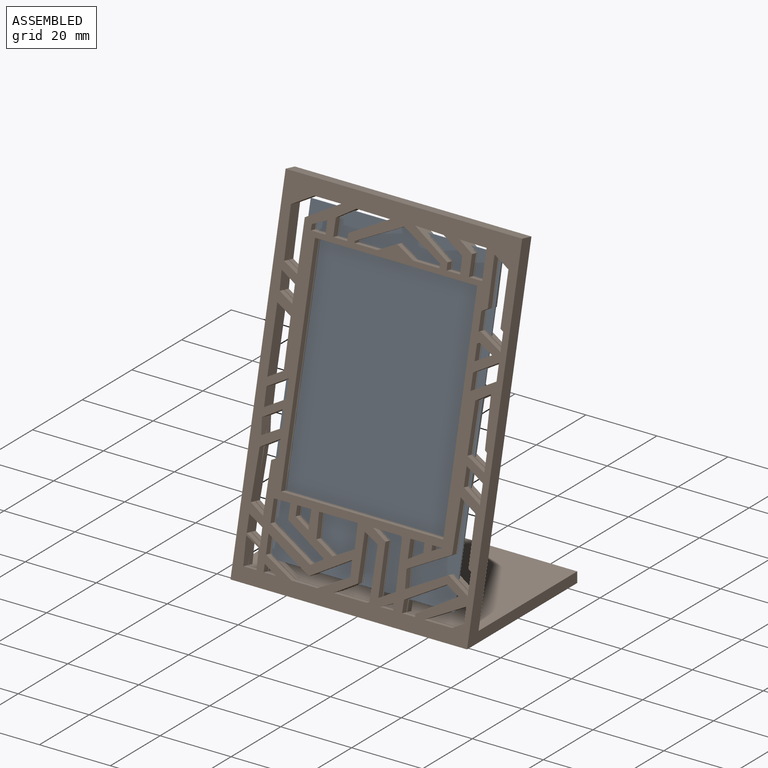
[diagram: assembled view]
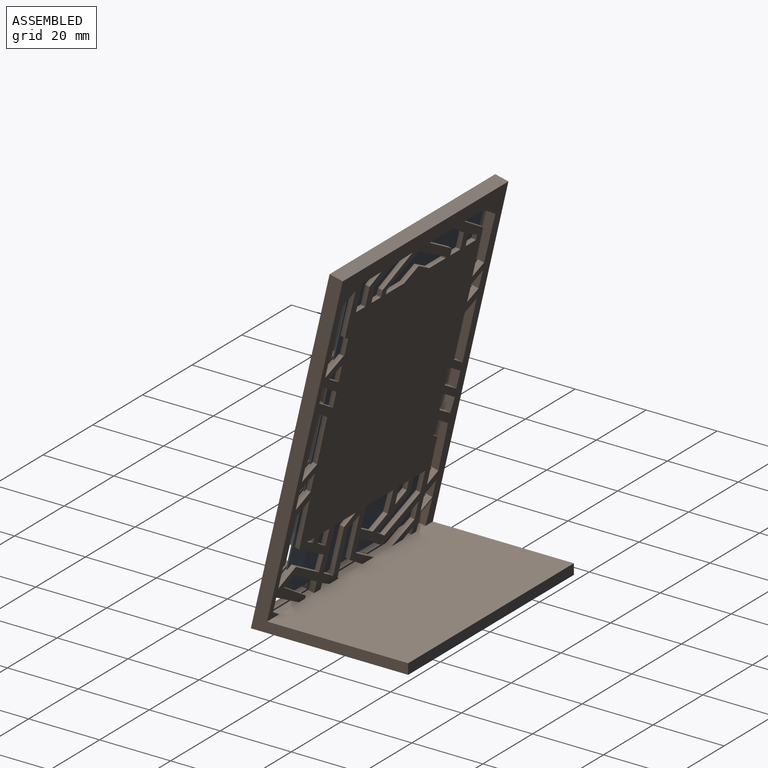
[diagram: assembled view, second angle]
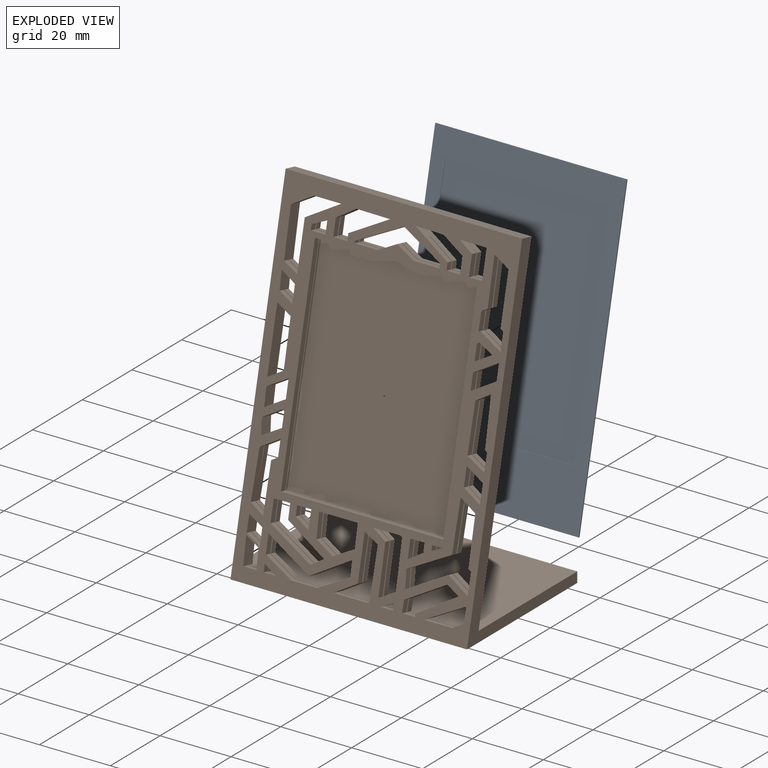
[diagram: exploded view]
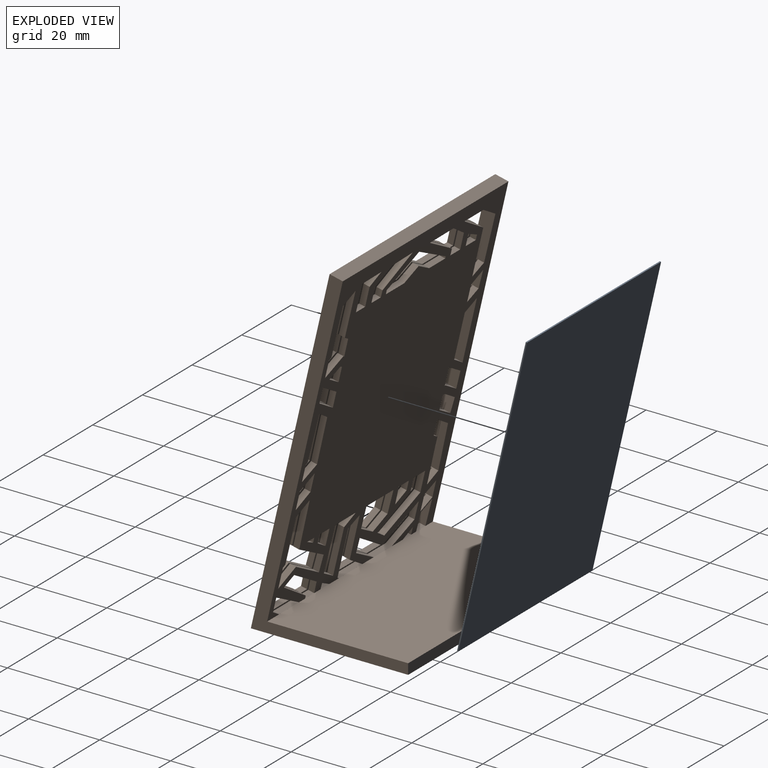
[diagram: exploded view, second angle]
ASSEMBLY  parts=2 mates=2
PART A: 11 faces, bbox 54x86x0.4 mm
  f0: plane 86x54mm, normal (0,0,1), area 1792mm2, adj f1,f2,f3,f4,f6,f7,f8,f9
  f1: plane 54x0.36mm, normal (0,-1,0), area 19.2mm2, adj f0,f2,f4,f5
  f2: plane 86x0.36mm, normal (1,0,0), area 30.6mm2, adj f0,f1,f3,f5
  f3: plane 54x0.36mm, normal (0,1,0), area 19.2mm2, adj f0,f2,f4,f5
  f4: plane 86x0.36mm, normal (-1,0,0), area 30.6mm2, adj f0,f1,f3,f5
  f5: plane 86x54mm, normal (0,0,-1), area 4644mm2, adj f1,f2,f3,f4
  f6: plane 46x0.13mm, normal (0,1,0), area 5.8mm2, adj f0,f7,f9,f10
  f7: plane 62x0.13mm, normal (-1,0,0), area 7.9mm2, adj f0,f6,f8,f10
  f8: plane 46x0.13mm, normal (0,-1,0), area 5.8mm2, adj f0,f7,f9,f10
  f9: plane 62x0.13mm, normal (1,0,0), area 7.9mm2, adj f0,f6,f8,f10
  f10: plane 62x46mm, normal (0,0,1), area 2852mm2, adj f6,f7,f8,f9
PART B: 310 faces, bbox 66.7x98.7x43.2 mm
  f0: plane 91.87x60.96mm, normal (0,0,1), area 1439.5mm2, adj f1,f2,f6,f7,f8,f9,f10,f11
  f1: plane 6.23x0.36mm, normal (1,0,0), area 2.2mm2, adj f0,f3,f166,f309
  f2: plane 4.7x0.36mm, normal (-1,0,0), area 1.7mm2, adj f0,f3,f95,f309
  f3: plane 91.95x60.96mm, normal (0,0,-1), area 1444.5mm2, adj f1,f2,f6,f7,f8,f9,f10,f11
  f4: plane 94.79x66.7mm, normal (0,0,-1), area 4839.6mm2, adj f27,f28,f29,f31,f37,f38,f39,f40
  f5: plane 98.7x66.7mm, normal (0,0,1), area 2313.3mm2, adj f23,f24,f25,f26,f27,f28,f29,f37
  f6: plane 4.31x0.36mm, normal (0,-1,0), area 1.5mm2, adj f0,f3,f118,f128
  f7: plane 4.43x0.36mm, normal (0,-1,0), area 1.6mm2, adj f0,f3,f77,f116
  f8: plane 5.27x0.36mm, normal (0,-1,0), area 1.9mm2, adj f0,f3,f106,f129
  f9: plane 4.79x0.36mm, normal (0,-1,0), area 1.7mm2, adj f0,f3,f40,f107
  f10: plane 2.4x0.36mm, normal (0,-1,0), area 0.9mm2, adj f0,f3,f61,f75
  f11: plane 2.33x0.36mm, normal (1,0,0), area 0.8mm2, adj f0,f3,f187,f195
  f12: plane 2.34x0.36mm, normal (1,0,0), area 0.8mm2, adj f0,f3,f182,f196
  f13: plane 12.29x0.36mm, normal (1,0,0), area 4.4mm2, adj f0,f3,f153,f188
  f14: plane 6.66x0.36mm, normal (1,0,0), area 2.4mm2, adj f0,f3,f37,f177
  f15: plane 2.88x0.36mm, normal (1,0,0), area 1mm2, adj f0,f3,f178,f184
  f16: plane 0.55x0.36mm, normal (1,0,0), area 0.2mm2, adj f0,f3,f160,f165
  f17: plane 2.74x0.36mm, normal (1,0,0), area 1mm2, adj f0,f3,f154,f159
  f18: plane 3.72x0.36mm, normal (-1,0,0), area 1.3mm2, adj f0,f3,f93,f232
  f19: plane 2.81x0.36mm, normal (-1,0,0), area 1mm2, adj f0,f3,f83,f233
  f20: plane 2.5x0.36mm, normal (-1,0,0), area 0.9mm2, adj f0,f3,f81,f87
  f21: plane 2.69x0.36mm, normal (-1,0,0), area 1mm2, adj f0,f3,f53,f88
  f22: plane 3.87x0.36mm, normal (-1,0,0), area 1.4mm2, adj f0,f3,f54,f60
  f23: plane 45.72x1.73mm, normal (0,1,0), area 79mm2, adj f3,f5,f24,f26
  f24: plane 60.96x1.73mm, normal (-1,0,0), area 105.3mm2, adj f3,f5,f23,f25
  f25: plane 45.72x1.73mm, normal (0,-1,0), area 79mm2, adj f3,f5,f24,f26
  f26: plane 60.96x1.73mm, normal (1,0,0), area 105.3mm2, adj f3,f5,f23,f25
  f27: plane 98.7x43.22mm, normal (1,0,0), area 492.8mm2, adj f4,f5,f28,f30,f31,f309
  f28: plane 66.7x3.81mm, normal (0,1,0), area 254.1mm2, adj f4,f5,f27,f29
  f29: plane 98.7x43.22mm, normal (-1,0,0), area 492.8mm2, adj f4,f5,f28,f30,f31,f309
  f30: plane 66.7x2.88mm, normal (0,0.22,-0.97), area 197mm2, adj f27,f29,f31,f309
  f31: plane 66.7x38.74mm, normal (0,0.97,0.22), area 2652mm2, adj f4,f27,f29,f30
  f32: plane 60.96x45.72mm, normal (0,0,1), area 2787.1mm2, adj f33,f34,f35,f36
  f33: plane 60.96x0.46mm, normal (1,0,0), area 27.9mm2, adj f0,f32,f34,f36
  f34: plane 45.72x0.46mm, normal (0,-1,0), area 20.9mm2, adj f0,f32,f33,f35
  f35: plane 60.96x0.46mm, normal (-1,0,0), area 27.9mm2, adj f0,f32,f34,f36
  f36: plane 45.72x0.46mm, normal (0,1,0), area 20.9mm2, adj f0,f32,f33,f35
  f37: plane 13.54x3.81mm, normal (1,0.02,0), area 50.1mm2, adj f0,f3,f4,f5,f14,f38,f41,f43
  f38: plane 4.02x2.18mm, normal (0.48,0.88,0), area 7.9mm2, adj f0,f4,f37,f39
  f39: plane 13.66x1.73mm, normal (-1,0,0), area 23.6mm2, adj f0,f4,f38,f40
  f40: plane 9.41x5.62mm, normal (-0.51,0.86,0), area 39.3mm2, adj f0,f3,f4,f5,f9,f39,f42,f44
  f41: plane 4.02x2.18mm, normal (0.48,0.88,0), area 7.9mm2, adj f3,f5,f37,f42
  f42: plane 13.66x1.73mm, normal (-1,0,0), area 23.6mm2, adj f3,f5,f40,f41
  f43: plane 6x3.81mm, normal (0.51,-0.86,0), area 25.6mm2, adj f4,f5,f37,f44,f45,f46,f47,f48
  f44: plane 7.66x3.81mm, normal (0,-1,0), area 29.2mm2, adj f4,f5,f40,f43
  f45: plane 2.39x1.42mm, normal (0,0,-1), area 1.7mm2, adj f43,f46,f48
  f46: plane 1.42x0.36mm, normal (1,0,0), area 0.5mm2, adj f43,f45,f47,f48
  f47: plane 2.39x1.42mm, normal (0,0,1), area 1.7mm2, adj f43,f46,f48
  f48: plane 2.39x0.36mm, normal (0,-1,0), area 0.8mm2, adj f43,f45,f46,f47
  f49: plane 1.73x0.69mm, normal (0.51,-0.86,0), area 1.4mm2, adj f3,f5,f50,f52
  f50: plane 3.83x2.04mm, normal (-0.47,-0.88,0), area 7.5mm2, adj f3,f5,f49,f51
  f51: plane 4.52x2.6mm, normal (-0.5,0.87,0), area 9mm2, adj f3,f5,f50,f52
  f52: plane 4.22x1.73mm, normal (1,0,0), area 7.3mm2, adj f3,f5,f49,f51
  f53: plane 6.68x3.96mm, normal (-0.51,0.86,0), area 27.3mm2, adj f0,f3,f4,f5,f21,f55,f56,f57
  f54: plane 6.68x3.99mm, normal (0.51,-0.86,0), area 27.3mm2, adj f0,f3,f4,f5,f22,f55,f56,f57
  f55: plane 4.44x1.73mm, normal (1,0,0), area 7.7mm2, adj f0,f4,f53,f54
  f56: plane 4.47x3.81mm, normal (-1,0,0), area 17mm2, adj f4,f5,f53,f54
  f57: plane 4.44x1.73mm, normal (1,0,0), area 7.7mm2, adj f3,f5,f53,f54
  f58: plane 4.95x1.73mm, normal (1,0,0), area 8.5mm2, adj f0,f4,f59,f62
  f59: plane 1.73x0.45mm, normal (-0.49,0.87,0), area 0.9mm2, adj f0,f4,f58,f60
  f60: plane 6.23x3.81mm, normal (0.49,0.87,0), area 25.1mm2, adj f0,f3,f4,f5,f22,f59,f64,f65
  f61: plane 13.06x3.81mm, normal (1,0.01,0), area 45.4mm2, adj f0,f3,f4,f5,f10,f62,f68,f69
  f62: plane 1.73x1.65mm, normal (0.49,-0.87,0), area 3.3mm2, adj f0,f4,f58,f61
  f63: plane 4.95x1.73mm, normal (1,0,0), area 8.5mm2, adj f3,f5,f64,f69
  f64: plane 1.73x0.45mm, normal (-0.49,0.87,0), area 0.9mm2, adj f3,f5,f60,f63
  f65: plane 4.9x3.81mm, normal (-1,0,0), area 18.7mm2, adj f4,f5,f60,f66
  f66: plane 3.81x0.84mm, normal (-0.51,-0.86,0), area 3.7mm2, adj f4,f5,f65,f67
  f67: plane 14.25x3.81mm, normal (-1,0,0), area 54.3mm2, adj f4,f5,f66,f68
  f68: plane 4.31x3.81mm, normal (-0.5,-0.86,0), area 17.9mm2, adj f4,f5,f61,f67,f70,f71,f72,f73
  f69: plane 1.73x1.65mm, normal (0.49,-0.87,0), area 3.3mm2, adj f3,f5,f61,f63
  f70: plane 2.66x1.55mm, normal (0,0,-1), area 2.1mm2, adj f68,f71,f73
  f71: plane 1.55x0.36mm, normal (-1,0,0), area 0.6mm2, adj f68,f70,f72,f73
  f72: plane 2.66x1.55mm, normal (0,0,1), area 2.1mm2, adj f68,f71,f73
  f73: plane 2.66x0.36mm, normal (0,-1,0), area 0.9mm2, adj f68,f70,f71,f72
  f74: plane 3.71x1.73mm, normal (0,1,0), area 6.4mm2, adj f0,f4,f75,f76
  f75: plane 7.96x3.81mm, normal (-1,0,0), area 28.1mm2, adj f0,f3,f4,f5,f10,f74,f78,f80
  f76: plane 5.56x1.73mm, normal (1,0,0), area 9.6mm2, adj f0,f4,f74,f77
  f77: plane 3.95x3.81mm, normal (0.54,0.84,0), area 17.4mm2, adj f0,f3,f4,f5,f7,f76,f79,f80
  f78: plane 3.71x1.73mm, normal (0,1,0), area 6.4mm2, adj f3,f5,f75,f79
  f79: plane 5.56x1.73mm, normal (1,0,0), area 9.6mm2, adj f3,f5,f77,f78
  f80: plane 7.67x3.81mm, normal (-0.02,-1,0), area 29.2mm2, adj f4,f5,f75,f77
  f81: plane 5x3.81mm, normal (-0.51,-0.86,0), area 20.5mm2, adj f0,f3,f4,f5,f20,f82,f84,f85
  f82: plane 5.15x1.73mm, normal (1,0,0), area 8.9mm2, adj f0,f4,f81,f83
  f83: plane 5x3.81mm, normal (0.52,0.86,0), area 20.6mm2, adj f0,f3,f4,f5,f19,f82,f84,f85
  f84: plane 5.24x3.81mm, normal (-1,0,0), area 20mm2, adj f4,f5,f81,f83
  f85: plane 5.15x1.73mm, normal (1,0,0), area 8.9mm2, adj f3,f5,f81,f83
  f86: plane 13.25x1.73mm, normal (1,-0.01,0), area 22.9mm2, adj f0,f4,f87,f88
  f87: plane 5.18x3.81mm, normal (0.48,0.88,0), area 20.8mm2, adj f0,f3,f4,f5,f20,f86,f89,f90
  f88: plane 3.99x3.81mm, normal (0.54,-0.84,0), area 16.4mm2, adj f0,f3,f4,f5,f21,f86,f89,f92
  f89: plane 13.25x1.73mm, normal (1,-0.01,0), area 22.9mm2, adj f3,f5,f87,f88
  f90: plane 4.82x3.81mm, normal (-1,0,0), area 18.4mm2, adj f4,f5,f87,f91
  f91: plane 3.81x0.62mm, normal (-0.54,-0.84,0), area 2.8mm2, adj f4,f5,f90,f92
  f92: plane 13.39x3.81mm, normal (-1,-0.03,0), area 51mm2, adj f4,f5,f88,f91
  f93: plane 11.05x5.93mm, normal (0.47,-0.88,0), area 43.8mm2, adj f0,f3,f4,f5,f18,f94,f96,f97
  f94: plane 7.99x1.73mm, normal (0,1,0), area 13.8mm2, adj f0,f4,f93,f95
  f95: plane 3.81x3.06mm, normal (-0.52,0.86,0), area 12.8mm2, adj f0,f2,f3,f4,f5,f94,f96,f97
  f96: plane 4.09x3.81mm, normal (-1,0,0), area 15.6mm2, adj f4,f5,f93,f95
  f97: plane 7.99x1.73mm, normal (0,1,0), area 13.8mm2, adj f3,f5,f93,f95
  f98: plane 3.59x1.73mm, normal (0,1,0), area 6.2mm2, adj f3,f5,f99,f100
  f99: plane 3.46x1.73mm, normal (0.45,-0.89,0), area 6.7mm2, adj f3,f5,f98,f100
  f100: plane 1.73x1.73mm, normal (-1,-0.07,0), area 3mm2, adj f3,f5,f98,f99
  f101: plane 3.45x1.73mm, normal (-1,-0.01,0), area 6mm2, adj f3,f5,f102,f104
  f102: plane 4.11x1.73mm, normal (0,1,0), area 7.1mm2, adj f3,f5,f101,f103
  f103: plane 1.73x1.53mm, normal (1,-0.02,0), area 2.6mm2, adj f3,f5,f102,f104
  f104: plane 4.05x1.92mm, normal (0.43,-0.9,0), area 7.7mm2, adj f3,f5,f101,f103
  f105: plane 1.93x1.73mm, normal (-1,0,0), area 3.3mm2, adj f0,f4,f106,f109
  f106: plane 10.83x6.07mm, normal (-0.49,0.87,0), area 44.2mm2, adj f0,f3,f4,f5,f8,f105,f110,f111
  f107: plane 5.26x3.81mm, normal (0.55,-0.84,0), area 23mm2, adj f0,f3,f4,f5,f9,f108,f111,f112
  f108: plane 4.66x1.73mm, normal (1,0,0), area 8.1mm2, adj f0,f4,f107,f109
  f109: plane 3.95x1.73mm, normal (0,1,0), area 6.8mm2, adj f0,f4,f105,f108
  f110: plane 1.93x1.73mm, normal (-1,0,0), area 3.3mm2, adj f3,f5,f106,f113
  f111: plane 9.52x3.81mm, normal (-0.01,-1,0), area 36.3mm2, adj f4,f5,f106,f107
  f112: plane 4.66x1.73mm, normal (1,0,0), area 8.1mm2, adj f3,f5,f107,f113
  f113: plane 3.95x1.73mm, normal (0,1,0), area 6.8mm2, adj f3,f5,f110,f112
  f114: plane 3.78x1.73mm, normal (0,1,0), area 6.5mm2, adj f0,f4,f115,f117
  f115: plane 4.42x1.73mm, normal (-1,-0.01,0), area 7.6mm2, adj f0,f4,f114,f116
  f116: plane 5.85x3.81mm, normal (-0.52,-0.85,0), area 25mm2, adj f0,f3,f4,f5,f7,f115,f120,f122
  f117: plane 1.95x1.73mm, normal (1,0.04,0), area 3.4mm2, adj f0,f4,f114,f118
  f118: plane 10.12x6.3mm, normal (0.53,0.85,0), area 42.6mm2, adj f0,f3,f4,f5,f6,f117,f121,f122
  f119: plane 3.78x1.73mm, normal (0,1,0), area 6.5mm2, adj f3,f5,f120,f121
  f120: plane 4.42x1.73mm, normal (-1,-0.01,0), area 7.6mm2, adj f3,f5,f116,f119
  f121: plane 1.95x1.73mm, normal (1,0.04,0), area 3.4mm2, adj f3,f5,f118,f119
  f122: plane 8.1x3.81mm, normal (-0.03,-1,0), area 30.9mm2, adj f4,f5,f116,f118
  f123: plane 6.46x1.73mm, normal (0,1,0), area 11.2mm2, adj f0,f4,f124,f130
  f124: plane 5.12x2.74mm, normal (-0.47,0.88,0), area 10mm2, adj f0,f4,f123,f125
  f125: plane 4.96x2.74mm, normal (0.48,0.88,0), area 9.8mm2, adj f0,f4,f124,f126
  f126: plane 7.33x1.73mm, normal (0,1,0), area 12.7mm2, adj f0,f4,f125,f127
  f127: plane 1.73x1.16mm, normal (-1,0.07,0), area 2mm2, adj f0,f4,f126,f128
  f128: plane 11.13x6.07mm, normal (-0.48,-0.88,0), area 44.6mm2, adj f0,f3,f4,f5,f6,f127,f129,f135
  f129: plane 12.82x6.64mm, normal (0.46,-0.89,0), area 50.7mm2, adj f0,f3,f4,f5,f8,f128,f130,f136
  f130: plane 1.73x0.6mm, normal (1,0,0), area 1mm2, adj f0,f4,f123,f129
  f131: plane 6.46x1.73mm, normal (0,1,0), area 11.2mm2, adj f3,f5,f132,f136
  f132: plane 5.12x2.74mm, normal (-0.47,0.88,0), area 10mm2, adj f3,f5,f131,f133
  f133: plane 4.96x2.74mm, normal (0.48,0.88,0), area 9.8mm2, adj f3,f5,f132,f134
  f134: plane 7.33x1.73mm, normal (0,1,0), area 12.7mm2, adj f3,f5,f133,f135
  f135: plane 1.73x1.16mm, normal (-1,0.07,0), area 2mm2, adj f3,f5,f128,f134
  f136: plane 1.73x0.6mm, normal (1,0,0), area 1mm2, adj f3,f5,f129,f131
  f137: plane 6.31x3.82mm, normal (0.52,-0.86,0), area 12.7mm2, adj f3,f5,f138,f142
  f138: plane 12.47x1.73mm, normal (1,0,0), area 21.5mm2, adj f3,f5,f137,f139
  f139: plane 3.99x2.08mm, normal (-0.46,-0.89,0), area 7.8mm2, adj f3,f5,f138,f140
  f140: plane 13.81x1.73mm, normal (-1,0.01,0), area 23.8mm2, adj f3,f5,f139,f141
  f141: plane 1.73x0.71mm, normal (-0.5,0.86,0), area 1.4mm2, adj f3,f5,f140,f142
  f142: plane 9.42x1.73mm, normal (0,1,0), area 16.3mm2, adj f3,f5,f137,f141
  f143: plane 3.47x2.04mm, normal (-0.51,-0.86,0), area 7mm2, adj f3,f5,f144,f148
  f144: plane 11.02x6.83mm, normal (-0.53,0.85,0), area 22.4mm2, adj f3,f5,f143,f145
  f145: plane 1.73x0.86mm, normal (-1,0,0), area 1.5mm2, adj f3,f5,f144,f146
  f146: plane 3.66x1.73mm, normal (0,1,0), area 6.3mm2, adj f3,f5,f145,f147
  f147: plane 3.26x1.73mm, normal (1,-0.02,0), area 5.6mm2, adj f3,f5,f146,f148
  f148: plane 11.14x6.47mm, normal (0.5,-0.86,0), area 22.2mm2, adj f3,f5,f143,f147
  f149: plane 13.47x1.73mm, normal (-1,0.01,0), area 23.3mm2, adj f0,f4,f150,f154
  f150: plane 1.76x1.73mm, normal (-0.5,0.87,0), area 3.5mm2, adj f0,f4,f149,f151
  f151: plane 4.5x1.73mm, normal (-1,0,0), area 7.8mm2, adj f0,f4,f150,f152
  f152: plane 5.37x3.26mm, normal (0.52,-0.85,0), area 10.9mm2, adj f0,f4,f151,f153
  f153: plane 13.39x3.81mm, normal (1,-0.03,0), area 48.3mm2, adj f0,f3,f4,f5,f13,f152,f154,f158
  f154: plane 3.83x3.81mm, normal (0.52,0.85,0), area 15.5mm2, adj f0,f3,f4,f5,f17,f149,f153,f155
  f155: plane 13.47x1.73mm, normal (-1,0.01,0), area 23.3mm2, adj f3,f5,f154,f156
  f156: plane 1.76x1.73mm, normal (-0.5,0.87,0), area 3.5mm2, adj f3,f5,f155,f157
  f157: plane 4.5x1.73mm, normal (-1,0,0), area 7.8mm2, adj f3,f5,f156,f158
  f158: plane 5.37x3.26mm, normal (0.52,-0.85,0), area 10.9mm2, adj f3,f5,f153,f157
  f159: plane 4.02x3.81mm, normal (-0.49,-0.87,0), area 16mm2, adj f0,f3,f4,f5,f17,f161,f162,f163
  f160: plane 4.1x3.81mm, normal (0.49,0.87,0), area 16.3mm2, adj f0,f3,f4,f5,f16,f161,f162,f163
  f161: plane 4.69x1.73mm, normal (-1,-0.02,0), area 8.1mm2, adj f0,f4,f159,f160
  f162: plane 4.64x3.81mm, normal (1,0,0), area 17.7mm2, adj f4,f5,f159,f160
  f163: plane 4.69x1.73mm, normal (-1,-0.02,0), area 8.1mm2, adj f3,f5,f159,f160
  f164: plane 5.33x1.73mm, normal (-1,-0.04,0), area 9.2mm2, adj f0,f4,f165,f167
  f165: plane 3.83x3.81mm, normal (-0.48,-0.88,0), area 15.1mm2, adj f0,f3,f4,f5,f16,f164,f166,f168
  f166: plane 7.41x3.81mm, normal (1,0.04,0), area 27.3mm2, adj f0,f1,f3,f4,f5,f165,f167,f169
  f167: plane 3.74x1.73mm, normal (0,1,0), area 6.5mm2, adj f0,f4,f164,f166
  f168: plane 5.33x1.73mm, normal (-1,-0.04,0), area 9.2mm2, adj f3,f5,f165,f169
  f169: plane 3.74x1.73mm, normal (0,1,0), area 6.5mm2, adj f3,f5,f166,f168
  f170: plane 11.23x6.74mm, normal (0.51,-0.86,0), area 22.6mm2, adj f3,f5,f171,f172
  f171: plane 4.16x1.73mm, normal (-1,-0.04,0), area 7.2mm2, adj f3,f5,f170,f173
  f172: plane 12.39x7.15mm, normal (-0.5,-0.87,0), area 24.7mm2, adj f3,f5,f170,f176
  f173: plane 8.6x4.74mm, normal (-0.48,0.88,0), area 17mm2, adj f3,f5,f171,f174
  f174: plane 7.3x1.73mm, normal (0,1,0), area 12.6mm2, adj f3,f5,f173,f175
  f175: plane 7.8x4.24mm, normal (0.48,0.88,0), area 15.3mm2, adj f3,f5,f174,f176
  f176: plane 5.07x1.73mm, normal (1,0.02,0), area 8.8mm2, adj f3,f5,f172,f175
  f177: plane 4.13x3.81mm, normal (-0.5,-0.86,0), area 16.6mm2, adj f0,f3,f4,f5,f14,f179,f180,f181
  f178: plane 3.9x3.81mm, normal (0.49,0.87,0), area 15.5mm2, adj f0,f3,f4,f5,f15,f179,f180,f181
  f179: plane 4.82x1.73mm, normal (-1,0,0), area 8.3mm2, adj f0,f4,f177,f178
  f180: plane 5.05x3.81mm, normal (1,0.05,0), area 19.3mm2, adj f4,f5,f177,f178
  f181: plane 4.82x1.73mm, normal (-1,0,0), area 8.3mm2, adj f3,f5,f177,f178
  f182: plane 4.23x3.81mm, normal (-0.52,0.86,0), area 17.2mm2, adj f0,f3,f4,f5,f12,f183,f185,f186
  f183: plane 13.06x1.73mm, normal (-1,-0.01,0), area 22.5mm2, adj f0,f4,f182,f184
  f184: plane 4.12x3.81mm, normal (-0.5,-0.87,0), area 16.5mm2, adj f0,f3,f4,f5,f15,f183,f185,f186
  f185: plane 13.06x1.73mm, normal (-1,-0.01,0), area 22.5mm2, adj f3,f5,f182,f184
  f186: plane 17.96x3.81mm, normal (1,0,0), area 68.4mm2, adj f4,f5,f182,f184
  f187: plane 5.29x3.81mm, normal (0.51,-0.86,0), area 21.4mm2, adj f0,f3,f4,f5,f11,f188,f189,f192
  f188: plane 4.23x3.81mm, normal (0.99,0.11,0), area 15.5mm2, adj f0,f3,f4,f5,f13,f187,f190,f193
  f189: plane 1.73x0.55mm, normal (-0.51,-0.86,0), area 1.1mm2, adj f0,f4,f187,f191
  f190: plane 5.37x3.08mm, normal (-0.5,0.87,0), area 10.7mm2, adj f0,f4,f188,f191
  f191: plane 4x1.73mm, normal (-1,0,0), area 6.9mm2, adj f0,f4,f189,f190
  f192: plane 1.73x0.55mm, normal (-0.51,-0.86,0), area 1.1mm2, adj f3,f5,f187,f194
  f193: plane 5.37x3.08mm, normal (-0.5,0.87,0), area 10.7mm2, adj f3,f5,f188,f194
  f194: plane 4x1.73mm, normal (-1,0,0), area 6.9mm2, adj f3,f5,f192,f193
  f195: plane 5.41x3.81mm, normal (-0.51,0.86,0), area 21.7mm2, adj f0,f3,f4,f5,f11,f197,f199,f200
  f196: plane 5.73x3.81mm, normal (0.51,-0.86,0), area 23mm2, adj f0,f3,f4,f5,f12,f198,f199,f201
  f197: plane 1.73x0.2mm, normal (0.51,0.86,0), area 0.4mm2, adj f0,f4,f195,f198
  f198: plane 5.25x1.73mm, normal (-1,0,0), area 9.1mm2, adj f0,f4,f196,f197
  f199: plane 4.94x3.81mm, normal (1,0.02,0), area 18.8mm2, adj f4,f5,f195,f196
  f200: plane 1.73x0.2mm, normal (0.51,0.86,0), area 0.4mm2, adj f3,f5,f195,f201
  f201: plane 5.25x1.73mm, normal (-1,0,0), area 9.1mm2, adj f3,f5,f196,f200
  f202: plane 3.42x1.73mm, normal (0,1,0), area 5.9mm2, adj f3,f5,f203,f204
  f203: plane 2.08x1.73mm, normal (1,0,0), area 3.6mm2, adj f3,f5,f202,f204
  f204: plane 3.41x2.08mm, normal (-0.52,-0.85,0), area 6.9mm2, adj f3,f5,f202,f203
  f205: plane 5.73x3.15mm, normal (-0.48,0.88,0), area 11.3mm2, adj f3,f5,f206,f207
  f206: plane 5.01x2.86mm, normal (0.5,0.87,0), area 10mm2, adj f3,f5,f205,f208
  f207: plane 6.28x1.73mm, normal (-1,-0.02,0), area 10.9mm2, adj f3,f5,f205,f210
  f208: plane 6.44x1.73mm, normal (1,0.04,0), area 11.1mm2, adj f3,f5,f206,f209
  f209: plane 1.73x0.22mm, normal (0.49,-0.87,0), area 0.4mm2, adj f3,f5,f208,f210
  f210: plane 10.66x1.73mm, normal (0,-1,0), area 18.4mm2, adj f3,f5,f207,f209
  f211: plane 11.14x6.65mm, normal (-0.51,-0.86,0), area 22.4mm2, adj f3,f5,f212,f213
  f212: plane 3.49x2.25mm, normal (-0.54,0.84,0), area 7.2mm2, adj f3,f5,f211,f214
  f213: plane 4.02x1.73mm, normal (-1,-0.01,0), area 6.9mm2, adj f3,f5,f211,f216
  f214: plane 12.31x6.9mm, normal (0.49,0.87,0), area 24.4mm2, adj f3,f5,f212,f215
  f215: plane 6.02x1.73mm, normal (1,0,0), area 10.4mm2, adj f3,f5,f214,f216
  f216: plane 4.63x1.73mm, normal (0,-1,0), area 8mm2, adj f3,f5,f213,f215
  f217: plane 5.02x1.73mm, normal (-1,0.02,0), area 8.7mm2, adj f3,f5,f218,f220
  f218: plane 3.91x2.33mm, normal (0.51,0.86,0), area 7.9mm2, adj f3,f5,f217,f219
  f219: plane 2.69x1.73mm, normal (1,0,0), area 4.7mm2, adj f3,f5,f218,f220
  f220: plane 4.01x1.73mm, normal (0,-1,0), area 6.9mm2, adj f3,f5,f217,f219
  f221: plane 2.88x1.73mm, normal (0,-1,0), area 5mm2, adj f3,f5,f222,f223
  f222: plane 2.88x1.73mm, normal (-0.44,0.9,0), area 5.5mm2, adj f3,f5,f221,f223
  f223: plane 1.73x1.4mm, normal (1,0,0), area 2.4mm2, adj f3,f5,f221,f222
  f224: plane 3.95x2.4mm, normal (-0.52,0.86,0), area 8mm2, adj f3,f5,f225,f226
  f225: plane 4.87x1.73mm, normal (1,0.01,0), area 8.4mm2, adj f3,f5,f224,f227
  f226: plane 2.47x1.73mm, normal (-1,-0.02,0), area 4.3mm2, adj f3,f5,f224,f227
  f227: plane 3.95x1.73mm, normal (0,-1,0), area 6.8mm2, adj f3,f5,f225,f226
  f228: plane 13.89x1.73mm, normal (1,-0.02,0), area 24mm2, adj f0,f4,f229,f233
  f229: plane 11.86x6.35mm, normal (0.47,-0.88,0), area 23.2mm2, adj f0,f4,f228,f230
  f230: plane 4.79x1.73mm, normal (1,0.07,0), area 8.3mm2, adj f0,f4,f229,f231
  f231: plane 11.26x6.23mm, normal (-0.48,0.88,0), area 22.2mm2, adj f0,f4,f230,f232
  f232: plane 5.96x3.81mm, normal (0.52,0.86,0), area 24.5mm2, adj f0,f3,f4,f5,f18,f231,f237,f238
  f233: plane 4.55x3.81mm, normal (-0.52,-0.86,0), area 18.4mm2, adj f0,f3,f4,f5,f19,f228,f234,f240
  f234: plane 13.89x1.73mm, normal (1,-0.02,0), area 24mm2, adj f3,f5,f233,f235
  f235: plane 11.86x6.35mm, normal (0.47,-0.88,0), area 23.2mm2, adj f3,f5,f234,f236
  f236: plane 4.79x1.73mm, normal (1,0.07,0), area 8.3mm2, adj f3,f5,f235,f237
  f237: plane 11.26x6.23mm, normal (-0.48,0.88,0), area 22.2mm2, adj f3,f5,f232,f236
  f238: plane 5.84x3.81mm, normal (-1,0,0), area 22.3mm2, adj f4,f5,f232,f239
  f239: plane 3.81x0.81mm, normal (-0.53,-0.85,0), area 3.6mm2, adj f4,f5,f238,f240
  f240: plane 13.3x3.81mm, normal (-1,-0.01,0), area 50.7mm2, adj f4,f5,f233,f239
  f241: plane 13.06x1.73mm, normal (-1,-0.02,0), area 22.6mm2, adj f3,f5,f242,f243
  f242: plane 4.53x2.52mm, normal (-0.49,0.87,0), area 9mm2, adj f3,f5,f241,f244
  f243: plane 1.73x0.54mm, normal (-0.5,-0.86,0), area 1.1mm2, adj f3,f5,f241,f246
  f244: plane 13.46x1.73mm, normal (1,0.01,0), area 23.3mm2, adj f3,f5,f242,f245
  f245: plane 3.93x2.43mm, normal (0.53,0.85,0), area 8mm2, adj f3,f5,f244,f246
  f246: plane 7.73x1.73mm, normal (0,-1,0), area 13.4mm2, adj f3,f5,f243,f245
  f247: plane 4.22x1.73mm, normal (1,0,0), area 7.3mm2, adj f0,f4,f248,f250
  f248: plane 4.52x2.6mm, normal (-0.5,0.87,0), area 9mm2, adj f0,f4,f247,f249
  f249: plane 3.83x2.04mm, normal (-0.47,-0.88,0), area 7.5mm2, adj f0,f4,f248,f250
  f250: plane 1.73x0.69mm, normal (0.51,-0.86,0), area 1.4mm2, adj f0,f4,f247,f249
  f251: plane 1.73x1.73mm, normal (-1,-0.07,0), area 3mm2, adj f0,f4,f252,f253
  f252: plane 3.46x1.73mm, normal (0.45,-0.89,0), area 6.7mm2, adj f0,f4,f251,f253
  f253: plane 3.59x1.73mm, normal (0,1,0), area 6.2mm2, adj f0,f4,f251,f252
  f254: plane 4.05x1.92mm, normal (0.43,-0.9,0), area 7.7mm2, adj f0,f4,f255,f257
  f255: plane 1.73x1.53mm, normal (1,-0.02,0), area 2.6mm2, adj f0,f4,f254,f256
  f256: plane 4.11x1.73mm, normal (0,1,0), area 7.1mm2, adj f0,f4,f255,f257
  f257: plane 3.45x1.73mm, normal (-1,-0.01,0), area 6mm2, adj f0,f4,f254,f256
  f258: plane 9.42x1.73mm, normal (0,1,0), area 16.3mm2, adj f0,f4,f259,f263
  f259: plane 1.73x0.71mm, normal (-0.5,0.86,0), area 1.4mm2, adj f0,f4,f258,f260
  f260: plane 13.81x1.73mm, normal (-1,0.01,0), area 23.8mm2, adj f0,f4,f259,f261
  f261: plane 3.99x2.08mm, normal (-0.46,-0.89,0), area 7.8mm2, adj f0,f4,f260,f262
  f262: plane 12.47x1.73mm, normal (1,0,0), area 21.5mm2, adj f0,f4,f261,f263
  f263: plane 6.31x3.82mm, normal (0.52,-0.86,0), area 12.7mm2, adj f0,f4,f258,f262
  f264: plane 11.14x6.47mm, normal (0.5,-0.86,0), area 22.2mm2, adj f0,f4,f265,f269
  f265: plane 3.26x1.73mm, normal (1,-0.02,0), area 5.6mm2, adj f0,f4,f264,f266
  f266: plane 3.66x1.73mm, normal (0,1,0), area 6.3mm2, adj f0,f4,f265,f267
  f267: plane 1.73x0.86mm, normal (-1,0,0), area 1.5mm2, adj f0,f4,f266,f268
  f268: plane 11.02x6.83mm, normal (-0.53,0.85,0), area 22.4mm2, adj f0,f4,f267,f269
  f269: plane 3.47x2.04mm, normal (-0.51,-0.86,0), area 7mm2, adj f0,f4,f264,f268
  f270: plane 5.07x1.73mm, normal (1,0.02,0), area 8.8mm2, adj f0,f4,f271,f274
  f271: plane 7.8x4.24mm, normal (0.48,0.88,0), area 15.3mm2, adj f0,f4,f270,f272
  f272: plane 7.3x1.73mm, normal (0,1,0), area 12.6mm2, adj f0,f4,f271,f273
  f273: plane 8.6x4.74mm, normal (-0.48,0.88,0), area 17mm2, adj f0,f4,f272,f275
  f274: plane 12.39x7.15mm, normal (-0.5,-0.87,0), area 24.7mm2, adj f0,f4,f270,f276
  f275: plane 4.16x1.73mm, normal (-1,-0.04,0), area 7.2mm2, adj f0,f4,f273,f276
  f276: plane 11.23x6.74mm, normal (0.51,-0.86,0), area 22.6mm2, adj f0,f4,f274,f275
  f277: plane 3.41x2.08mm, normal (-0.52,-0.85,0), area 6.9mm2, adj f0,f4,f278,f279
  f278: plane 2.08x1.73mm, normal (1,0,0), area 3.6mm2, adj f0,f4,f277,f279
  f279: plane 3.42x1.73mm, normal (0,1,0), area 5.9mm2, adj f0,f4,f277,f278
  f280: plane 10.66x1.73mm, normal (0,-1,0), area 18.4mm2, adj f0,f4,f281,f283
  f281: plane 1.73x0.22mm, normal (0.49,-0.87,0), area 0.4mm2, adj f0,f4,f280,f282
  f282: plane 6.44x1.73mm, normal (1,0.04,0), area 11.1mm2, adj f0,f4,f281,f284
  f283: plane 6.28x1.73mm, normal (-1,-0.02,0), area 10.9mm2, adj f0,f4,f280,f285
  f284: plane 5.01x2.86mm, normal (0.5,0.87,0), area 10mm2, adj f0,f4,f282,f285
  f285: plane 5.73x3.15mm, normal (-0.48,0.88,0), area 11.3mm2, adj f0,f4,f283,f284
  f286: plane 4.63x1.73mm, normal (0,-1,0), area 8mm2, adj f0,f4,f287,f289
  f287: plane 6.02x1.73mm, normal (1,0,0), area 10.4mm2, adj f0,f4,f286,f288
  f288: plane 12.31x6.9mm, normal (0.49,0.87,0), area 24.4mm2, adj f0,f4,f287,f290
  f289: plane 4.02x1.73mm, normal (-1,-0.01,0), area 6.9mm2, adj f0,f4,f286,f291
  f290: plane 3.49x2.25mm, normal (-0.54,0.84,0), area 7.2mm2, adj f0,f4,f288,f291
  f291: plane 11.14x6.65mm, normal (-0.51,-0.86,0), area 22.4mm2, adj f0,f4,f289,f290
  f292: plane 4.01x1.73mm, normal (0,-1,0), area 6.9mm2, adj f0,f4,f293,f295
  f293: plane 2.69x1.73mm, normal (1,0,0), area 4.7mm2, adj f0,f4,f292,f294
  f294: plane 3.91x2.33mm, normal (0.51,0.86,0), area 7.9mm2, adj f0,f4,f293,f295
  f295: plane 5.02x1.73mm, normal (-1,0.02,0), area 8.7mm2, adj f0,f4,f292,f294
  f296: plane 1.73x1.4mm, normal (1,0,0), area 2.4mm2, adj f0,f4,f297,f298
  f297: plane 2.88x1.73mm, normal (-0.44,0.9,0), area 5.5mm2, adj f0,f4,f296,f298
  f298: plane 2.88x1.73mm, normal (0,-1,0), area 5mm2, adj f0,f4,f296,f297
  f299: plane 3.95x1.73mm, normal (0,-1,0), area 6.8mm2, adj f0,f4,f300,f301
  f300: plane 2.47x1.73mm, normal (-1,-0.02,0), area 4.3mm2, adj f0,f4,f299,f302
  f301: plane 4.87x1.73mm, normal (1,0.01,0), area 8.4mm2, adj f0,f4,f299,f302
  f302: plane 3.95x2.4mm, normal (-0.52,0.86,0), area 8mm2, adj f0,f4,f300,f301
  f303: plane 7.73x1.73mm, normal (0,-1,0), area 13.4mm2, adj f0,f4,f304,f306
  f304: plane 3.93x2.43mm, normal (0.53,0.85,0), area 8mm2, adj f0,f4,f303,f305
  f305: plane 13.46x1.73mm, normal (1,0.01,0), area 23.3mm2, adj f0,f4,f304,f307
  f306: plane 1.73x0.54mm, normal (-0.5,-0.86,0), area 1.1mm2, adj f0,f4,f303,f308
  f307: plane 4.53x2.52mm, normal (-0.49,0.87,0), area 9mm2, adj f0,f4,f305,f308
  f308: plane 13.06x1.73mm, normal (-1,-0.02,0), area 22.6mm2, adj f0,f4,f306,f307
  f309: plane 66.7x43.22mm, normal (0,-0.97,-0.22), area 2936.1mm2, adj f0,f1,f2,f3,f5,f27,f29,f30
PLACE A rot(axis=(1,0,0),77deg) t=(0.14,-10.31,48.98)mm
PLACE B rot(axis=(1,0,0),77deg) t=(0,-11.07,48.51)mm
MATE planar B.f32 <-> A.f5  axis (0,-0.97,0.22) through (0,-9.35,53.15)mm
MATE planar B.f33 <-> A.f9  axis (1,0,0) through (-22.86,-9.58,53.2)mm
